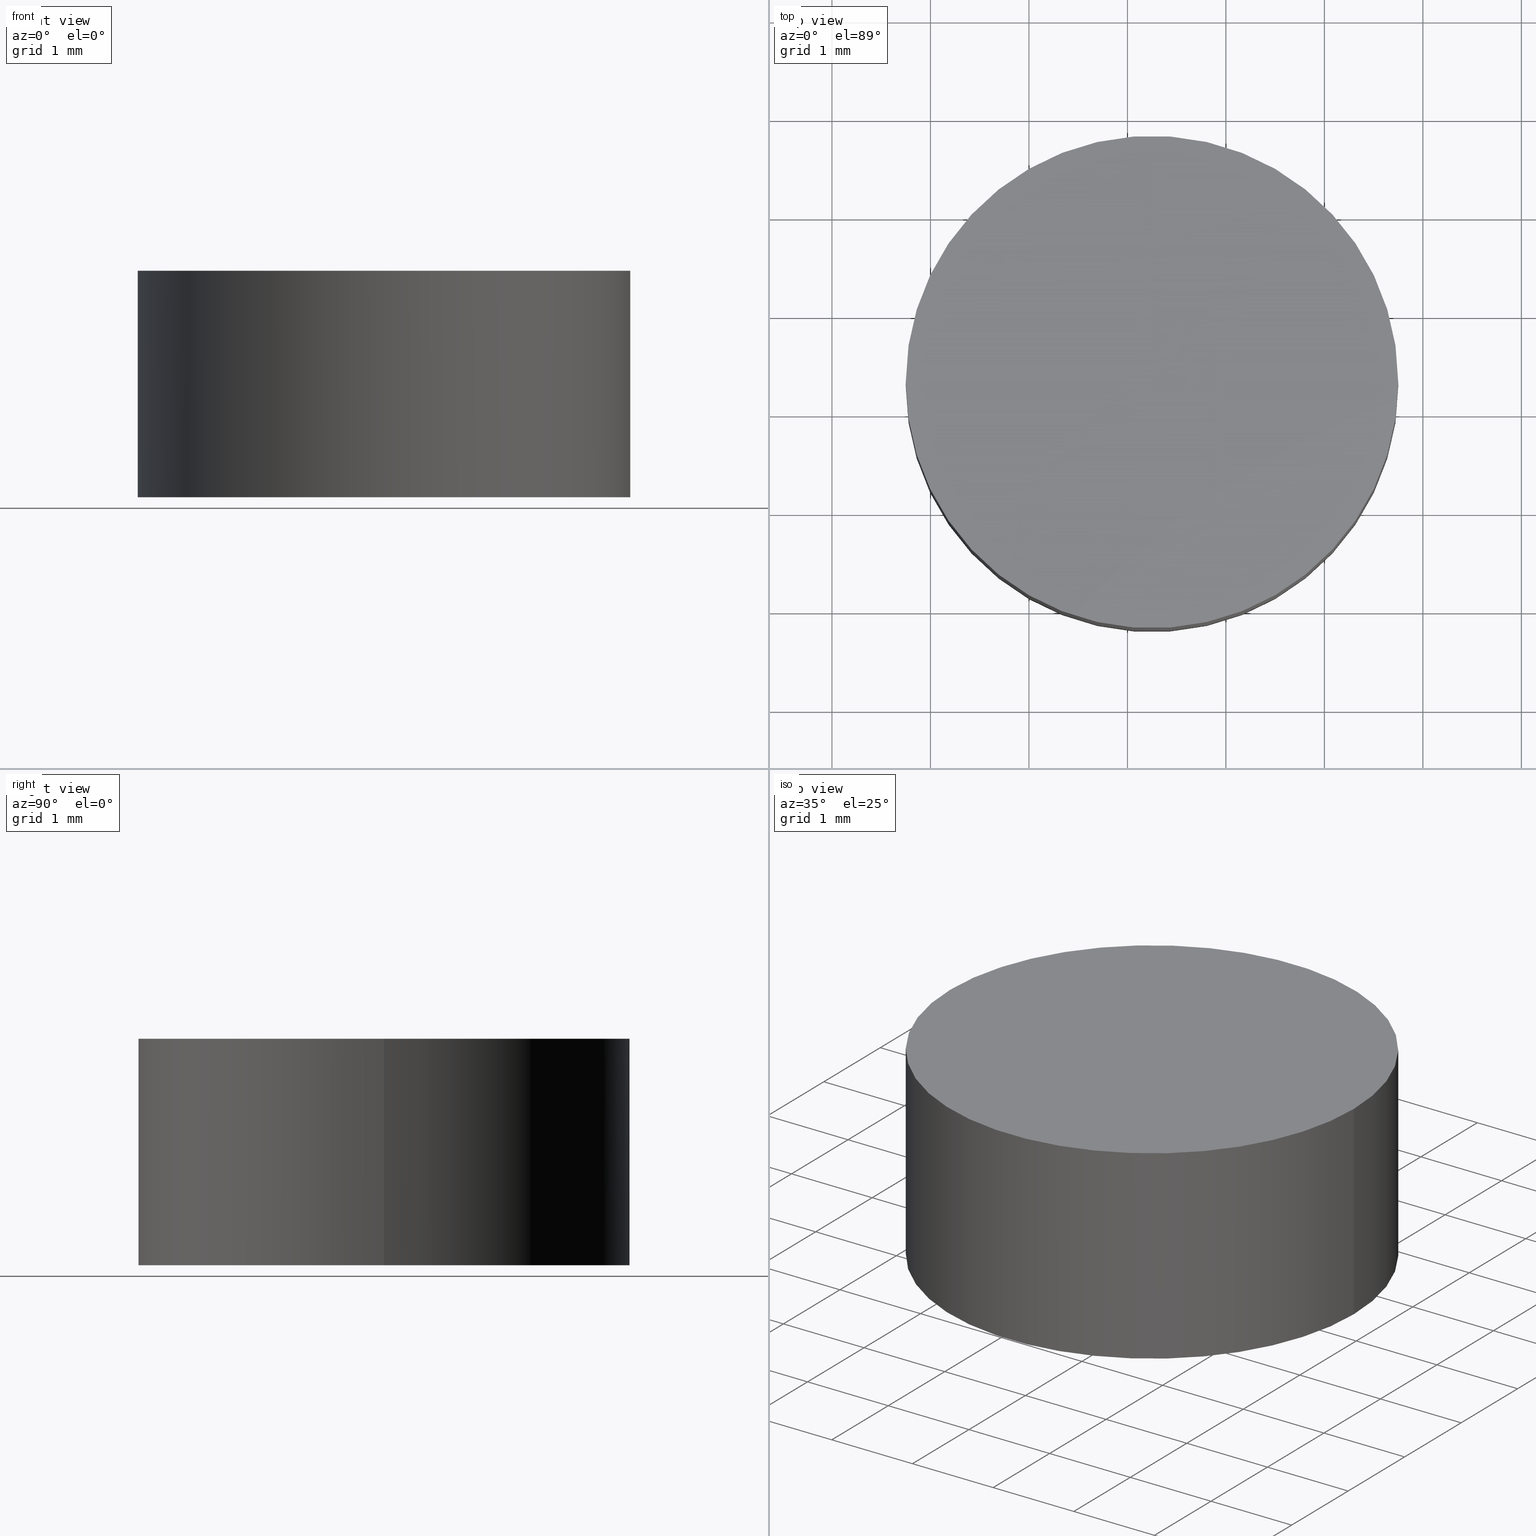
[diagram: canonical four-view strip — front | top / right | iso, engineering-drawing reading convention]
A machine part, canonical four-view strip (front | top / right | iso — engineering-drawing reading convention). The complete STEP part file that produces these views, byte-faithful:
ISO-10303-21;
HEADER;
FILE_DESCRIPTION (( 'STEP AP214' ),
    '1' );
FILE_NAME ('302500.STEP',
    '2019-08-13T02:30:45',
    ( '' ),
    ( '' ),
    'SwSTEP 2.0',
    'SolidWorks 2016',
    '' );
FILE_SCHEMA (( 'AUTOMOTIVE_DESIGN' ));
ENDSEC;

DATA;
#1 = EDGE_CURVE ( 'NONE', #4, #50, #14, .T. ) ;
#2 = FACE_OUTER_BOUND ( 'NONE', #39, .T. ) ;
#3 = MECHANICAL_DESIGN_GEOMETRIC_PRESENTATION_REPRESENTATION (  '', ( #129 ), #18 ) ;
#4 = VERTEX_POINT ( 'NONE', #33 ) ;
#5 = DIRECTION ( 'NONE',  ( -0.0000000000000000000, -0.0000000000000000000, -1.000000000000000000 ) ) ;
#6 = ADVANCED_FACE ( 'NONE', ( #100 ), #63, .T. ) ;
#7 = DIRECTION ( 'NONE',  ( 0.0000000000000000000, 0.0000000000000000000, 1.000000000000000000 ) ) ;
#8 = PRODUCT ( '302500', '302500', '', ( #84 ) ) ;
#9 = CARTESIAN_POINT ( 'NONE',  ( 0.0000000000000000000, 0.0000000000000000000, 0.0000000000000000000 ) ) ;
#10 =( GEOMETRIC_REPRESENTATION_CONTEXT ( 3 ) GLOBAL_UNCERTAINTY_ASSIGNED_CONTEXT ( ( #133 ) ) GLOBAL_UNIT_ASSIGNED_CONTEXT ( ( #114, #54, #20 ) ) REPRESENTATION_CONTEXT ( 'NONE', 'WORKASPACE' ) );
#11 = SURFACE_SIDE_STYLE ('',( #36 ) ) ;
#12 = CARTESIAN_POINT ( 'NONE',  ( 20.24958715517702100, 12.31264836690532000, 0.0000000000000000000 ) ) ;
#13 = PRODUCT_DEFINITION ( 'δ֪', '', #28, #59 ) ;
#14 = LINE ( 'NONE', #122, #118 ) ;
#15 = SURFACE_STYLE_FILL_AREA ( #25 ) ;
#16 = EDGE_CURVE ( 'NONE', #131, #50, #95, .T. ) ;
#17 = EDGE_LOOP ( 'NONE', ( #104, #121 ) ) ;
#18 =( GEOMETRIC_REPRESENTATION_CONTEXT ( 3 ) GLOBAL_UNCERTAINTY_ASSIGNED_CONTEXT ( ( #117 ) ) GLOBAL_UNIT_ASSIGNED_CONTEXT ( ( #24, #110, #83 ) ) REPRESENTATION_CONTEXT ( 'NONE', 'WORKASPACE' ) );
#19 = CARTESIAN_POINT ( 'NONE',  ( 17.74958715517702100, 12.31264836690532000, 2.299999999999999800 ) ) ;
#20 =( NAMED_UNIT ( * ) SI_UNIT ( $, .STERADIAN. ) SOLID_ANGLE_UNIT ( ) );
#21 = MANIFOLD_SOLID_BREP ( '͹̨-����1', #23 ) ;
#22 = DIRECTION ( 'NONE',  ( 0.0000000000000000000, 0.0000000000000000000, 1.000000000000000000 ) ) ;
#23 = CLOSED_SHELL ( 'NONE', ( #64, #105, #6, #44 ) ) ;
#24 =( LENGTH_UNIT ( ) NAMED_UNIT ( * ) SI_UNIT ( .MILLI., .METRE. ) );
#25 = FILL_AREA_STYLE ('',( #89 ) ) ;
#26 = PRESENTATION_STYLE_ASSIGNMENT (( #98 ) ) ;
#27 = ORIENTED_EDGE ( 'NONE', *, *, #61, .F. ) ;
#28 = PRODUCT_DEFINITION_FORMATION_WITH_SPECIFIED_SOURCE ( '�κ�', '', #8, .NOT_KNOWN. ) ;
#29 = VECTOR ( 'NONE', #137, 1000.000000000000000 ) ;
#30 = AXIS2_PLACEMENT_3D ( 'NONE', #34, #65, #81 ) ;
#31 = DIRECTION ( 'NONE',  ( 0.0000000000000000000, 0.0000000000000000000, 1.000000000000000000 ) ) ;
#32 = UNCERTAINTY_MEASURE_WITH_UNIT (LENGTH_MEASURE( 1.000000000000000100E-005 ), #123, 'distance_accuracy_value', 'NONE');
#33 = CARTESIAN_POINT ( 'NONE',  ( 22.74958715517701800, 12.31264836690532000, 2.299999999999999800 ) ) ;
#34 = CARTESIAN_POINT ( 'NONE',  ( 20.24958715517702100, 12.31264836690532000, 0.0000000000000000000 ) ) ;
#35 = COLOUR_RGB ( '',1.000000000000000000, 1.000000000000000000, 1.000000000000000000 ) ;
#36 = SURFACE_STYLE_FILL_AREA ( #57 ) ;
#37 = DIRECTION ( 'NONE',  ( -0.0000000000000000000, -0.0000000000000000000, -1.000000000000000000 ) ) ;
#38 = APPLICATION_CONTEXT ( 'automotive_design' ) ;
#39 = EDGE_LOOP ( 'NONE', ( #69, #109, #119, #40 ) ) ;
#40 = ORIENTED_EDGE ( 'NONE', *, *, #16, .T. ) ;
#41 = AXIS2_PLACEMENT_3D ( 'NONE', #12, #66, #108 ) ;
#42 = EDGE_CURVE ( 'NONE', #60, #131, #51, .T. ) ;
#43 = ORIENTED_EDGE ( 'NONE', *, *, #106, .T. ) ;
#44 = ADVANCED_FACE ( 'NONE', ( #74 ), #67, .F. ) ;
#45 = CARTESIAN_POINT ( 'NONE',  ( 20.24958715517702100, 12.31264836690532000, 2.299999999999999800 ) ) ;
#46 = CYLINDRICAL_SURFACE ( 'NONE', #77, 2.499999999999998700 ) ;
#47 = DIRECTION ( 'NONE',  ( 1.000000000000000000, 0.0000000000000000000, 0.0000000000000000000 ) ) ;
#48 = DIRECTION ( 'NONE',  ( 1.000000000000000000, 0.0000000000000000000, -0.0000000000000000000 ) ) ;
#49 = DIRECTION ( 'NONE',  ( 0.0000000000000000000, 0.0000000000000000000, 1.000000000000000000 ) ) ;
#50 = VERTEX_POINT ( 'NONE', #126 ) ;
#51 = LINE ( 'NONE', #115, #29 ) ;
#52 = ORIENTED_EDGE ( 'NONE', *, *, #61, .T. ) ;
#53 = ORIENTED_EDGE ( 'NONE', *, *, #42, .F. ) ;
#54 =( NAMED_UNIT ( * ) PLANE_ANGLE_UNIT ( ) SI_UNIT ( $, .RADIAN. ) );
#55 = PRESENTATION_LAYER_ASSIGNMENT (  '', '', ( #129 ) ) ;
#56 = CARTESIAN_POINT ( 'NONE',  ( 20.24958715517702100, 12.31264836690532000, 2.299999999999999800 ) ) ;
#57 = FILL_AREA_STYLE ('',( #87 ) ) ;
#58 = APPLICATION_CONTEXT ( 'automotive_design' ) ;
#59 = PRODUCT_DEFINITION_CONTEXT ( 'detailed design', #38, 'design' ) ;
#60 = VERTEX_POINT ( 'NONE', #19 ) ;
#61 = EDGE_CURVE ( 'NONE', #4, #60, #140, .T. ) ;
#62 = AXIS2_PLACEMENT_3D ( 'NONE', #97, #7, #68 ) ;
#63 = PLANE ( 'NONE',  #71 ) ;
#64 = ADVANCED_FACE ( 'NONE', ( #80 ), #46, .T. ) ;
#65 = DIRECTION ( 'NONE',  ( 0.0000000000000000000, 0.0000000000000000000, 1.000000000000000000 ) ) ;
#66 = DIRECTION ( 'NONE',  ( 0.0000000000000000000, 0.0000000000000000000, 1.000000000000000000 ) ) ;
#67 = PLANE ( 'NONE',  #30 ) ;
#68 = DIRECTION ( 'NONE',  ( 1.000000000000000000, 0.0000000000000000000, 0.0000000000000000000 ) ) ;
#69 = ORIENTED_EDGE ( 'NONE', *, *, #1, .F. ) ;
#70 = DIRECTION ( 'NONE',  ( -0.0000000000000000000, -0.0000000000000000000, -1.000000000000000000 ) ) ;
#71 = AXIS2_PLACEMENT_3D ( 'NONE', #134, #31, #48 ) ;
#72 = APPLICATION_PROTOCOL_DEFINITION ( 'draft international standard', 'automotive_design', 1998, #38 ) ;
#73 = PRESENTATION_STYLE_ASSIGNMENT (( #135 ) ) ;
#74 = FACE_OUTER_BOUND ( 'NONE', #17, .T. ) ;
#75 = PRODUCT_RELATED_PRODUCT_CATEGORY ( 'part', '', ( #8 ) ) ;
#76 = CYLINDRICAL_SURFACE ( 'NONE', #103, 2.499999999999998700 ) ;
#77 = AXIS2_PLACEMENT_3D ( 'NONE', #139, #37, #96 ) ;
#78 =( NAMED_UNIT ( * ) SI_UNIT ( $, .STERADIAN. ) SOLID_ANGLE_UNIT ( ) );
#79 = DIRECTION ( 'NONE',  ( 1.000000000000000000, 0.0000000000000000000, 0.0000000000000000000 ) ) ;
#80 = FACE_OUTER_BOUND ( 'NONE', #99, .T. ) ;
#81 = DIRECTION ( 'NONE',  ( 1.000000000000000000, 0.0000000000000000000, -0.0000000000000000000 ) ) ;
#82 = DIRECTION ( 'NONE',  ( -1.000000000000000000, 0.0000000000000000000, 0.0000000000000000000 ) ) ;
#83 =( NAMED_UNIT ( * ) SI_UNIT ( $, .STERADIAN. ) SOLID_ANGLE_UNIT ( ) );
#84 = PRODUCT_CONTEXT ( 'NONE', #58, 'mechanical' ) ;
#85 = AXIS2_PLACEMENT_3D ( 'NONE', #45, #136, #79 ) ;
#86 = AXIS2_PLACEMENT_3D ( 'NONE', #116, #22, #47 ) ;
#87 = FILL_AREA_STYLE_COLOUR ( '', #93 ) ;
#88 = CIRCLE ( 'NONE', #85, 2.499999999999998700 ) ;
#89 = FILL_AREA_STYLE_COLOUR ( '', #35 ) ;
#90 = SURFACE_SIDE_STYLE ('',( #15 ) ) ;
#91 = STYLED_ITEM ( 'NONE', ( #73 ), #21 ) ;
#92 = ORIENTED_EDGE ( 'NONE', *, *, #120, .T. ) ;
#93 = COLOUR_RGB ( '',1.000000000000000000, 1.000000000000000000, 1.000000000000000000 ) ;
#94 = PRODUCT_DEFINITION_SHAPE ( 'NONE', 'NONE',  #13 ) ;
#95 = CIRCLE ( 'NONE', #86, 2.499999999999998700 ) ;
#96 = DIRECTION ( 'NONE',  ( -1.000000000000000000, 0.0000000000000000000, 0.0000000000000000000 ) ) ;
#97 = CARTESIAN_POINT ( 'NONE',  ( 20.24958715517702100, 12.31264836690532000, 2.299999999999999800 ) ) ;
#98 = SURFACE_STYLE_USAGE ( .BOTH. , #90 ) ;
#99 = EDGE_LOOP ( 'NONE', ( #27, #113, #43, #53 ) ) ;
#100 = FACE_OUTER_BOUND ( 'NONE', #101, .T. ) ;
#101 = EDGE_LOOP ( 'NONE', ( #92, #52 ) ) ;
#102 = PRESENTATION_LAYER_ASSIGNMENT (  '', '', ( #91 ) ) ;
#103 = AXIS2_PLACEMENT_3D ( 'NONE', #56, #70, #82 ) ;
#104 = ORIENTED_EDGE ( 'NONE', *, *, #16, .F. ) ;
#105 = ADVANCED_FACE ( 'NONE', ( #2 ), #76, .T. ) ;
#106 = EDGE_CURVE ( 'NONE', #50, #131, #124, .T. ) ;
#107 =( NAMED_UNIT ( * ) PLANE_ANGLE_UNIT ( ) SI_UNIT ( $, .RADIAN. ) );
#108 = DIRECTION ( 'NONE',  ( 1.000000000000000000, 0.0000000000000000000, 0.0000000000000000000 ) ) ;
#109 = ORIENTED_EDGE ( 'NONE', *, *, #120, .F. ) ;
#110 =( NAMED_UNIT ( * ) PLANE_ANGLE_UNIT ( ) SI_UNIT ( $, .RADIAN. ) );
#111 = ADVANCED_BREP_SHAPE_REPRESENTATION ( '302500', ( #21, #130 ), #10 ) ;
#112 = MECHANICAL_DESIGN_GEOMETRIC_PRESENTATION_REPRESENTATION (  '', ( #91 ), #132 ) ;
#113 = ORIENTED_EDGE ( 'NONE', *, *, #1, .T. ) ;
#114 =( LENGTH_UNIT ( ) NAMED_UNIT ( * ) SI_UNIT ( .MILLI., .METRE. ) );
#115 = CARTESIAN_POINT ( 'NONE',  ( 17.74958715517702100, 12.31264836690532000, 2.299999999999999800 ) ) ;
#116 = CARTESIAN_POINT ( 'NONE',  ( 20.24958715517702100, 12.31264836690532000, 0.0000000000000000000 ) ) ;
#117 = UNCERTAINTY_MEASURE_WITH_UNIT (LENGTH_MEASURE( 1.000000000000000100E-005 ), #24, 'distance_accuracy_value', 'NONE');
#118 = VECTOR ( 'NONE', #5, 1000.000000000000000 ) ;
#119 = ORIENTED_EDGE ( 'NONE', *, *, #42, .T. ) ;
#120 = EDGE_CURVE ( 'NONE', #60, #4, #88, .T. ) ;
#121 = ORIENTED_EDGE ( 'NONE', *, *, #106, .F. ) ;
#122 = CARTESIAN_POINT ( 'NONE',  ( 22.74958715517701800, 12.31264836690532000, 2.299999999999999800 ) ) ;
#123 =( LENGTH_UNIT ( ) NAMED_UNIT ( * ) SI_UNIT ( .MILLI., .METRE. ) );
#124 = CIRCLE ( 'NONE', #41, 2.499999999999998700 ) ;
#125 = CARTESIAN_POINT ( 'NONE',  ( 17.74958715517702100, 12.31264836690532000, 0.0000000000000000000 ) ) ;
#126 = CARTESIAN_POINT ( 'NONE',  ( 22.74958715517701800, 12.31264836690532000, 0.0000000000000000000 ) ) ;
#127 = APPLICATION_PROTOCOL_DEFINITION ( 'draft international standard', 'automotive_design', 1998, #58 ) ;
#128 = DIRECTION ( 'NONE',  ( 1.000000000000000000, 0.0000000000000000000, 0.0000000000000000000 ) ) ;
#129 = STYLED_ITEM ( 'NONE', ( #26 ), #111 ) ;
#130 = AXIS2_PLACEMENT_3D ( 'NONE', #9, #49, #128 ) ;
#131 = VERTEX_POINT ( 'NONE', #125 ) ;
#132 =( GEOMETRIC_REPRESENTATION_CONTEXT ( 3 ) GLOBAL_UNCERTAINTY_ASSIGNED_CONTEXT ( ( #32 ) ) GLOBAL_UNIT_ASSIGNED_CONTEXT ( ( #123, #107, #78 ) ) REPRESENTATION_CONTEXT ( 'NONE', 'WORKASPACE' ) );
#133 = UNCERTAINTY_MEASURE_WITH_UNIT (LENGTH_MEASURE( 1.000000000000000100E-005 ), #114, 'distance_accuracy_value', 'NONE');
#134 = CARTESIAN_POINT ( 'NONE',  ( 20.24958715517702100, 12.31264836690532000, 2.299999999999999800 ) ) ;
#135 = SURFACE_STYLE_USAGE ( .BOTH. , #11 ) ;
#136 = DIRECTION ( 'NONE',  ( 0.0000000000000000000, 0.0000000000000000000, 1.000000000000000000 ) ) ;
#137 = DIRECTION ( 'NONE',  ( -0.0000000000000000000, -0.0000000000000000000, -1.000000000000000000 ) ) ;
#138 = SHAPE_DEFINITION_REPRESENTATION ( #94, #111 ) ;
#139 = CARTESIAN_POINT ( 'NONE',  ( 20.24958715517702100, 12.31264836690532000, 2.299999999999999800 ) ) ;
#140 = CIRCLE ( 'NONE', #62, 2.499999999999998700 ) ;
ENDSEC;
END-ISO-10303-21;
